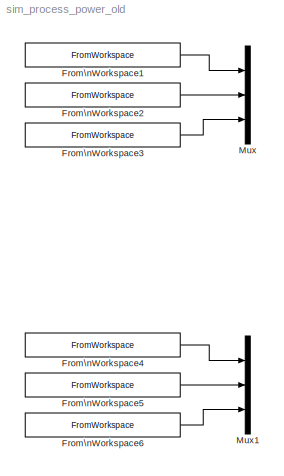
MODEL sim_process_power_old
KIND model
BLOCK [FromWorkspace] From\nWorkspace1
  SID = 11
  SampleTime = -1
  VariableName = [meas32.Timestamp meas32.V_ch1]
BLOCK [FromWorkspace] From\nWorkspace2
  SID = 12
  SampleTime = -1
  VariableName = [meas32.Timestamp meas32.V_ch2]
BLOCK [FromWorkspace] From\nWorkspace3
  SID = 13
  SampleTime = -1
  VariableName = [meas32.Timestamp meas32.V_ch3]
BLOCK [FromWorkspace] From\nWorkspace4
  SID = 24
  SampleTime = -1
  VariableName = [meas32.Timestamp meas32.I_ch1]
BLOCK [FromWorkspace] From\nWorkspace5
  SID = 25
  SampleTime = -1
  VariableName = [meas32.Timestamp meas32.I_ch2]
BLOCK [FromWorkspace] From\nWorkspace6
  SID = 26
  SampleTime = -1
  VariableName = [meas32.Timestamp meas32.I_ch3]
BLOCK [Mux] Mux
  DisplayOption = bar
  Inputs = 3
  Ports = [3, 1]
  SID = 14
BLOCK [Mux] Mux1
  DisplayOption = bar
  Inputs = 3
  Ports = [3, 1]
  SID = 27
LINE From\nWorkspace1:1 -> Mux:1
LINE From\nWorkspace2:1 -> Mux:2
LINE From\nWorkspace3:1 -> Mux:3
LINE From\nWorkspace4:1 -> Mux1:1
LINE From\nWorkspace5:1 -> Mux1:2
LINE From\nWorkspace6:1 -> Mux1:3
